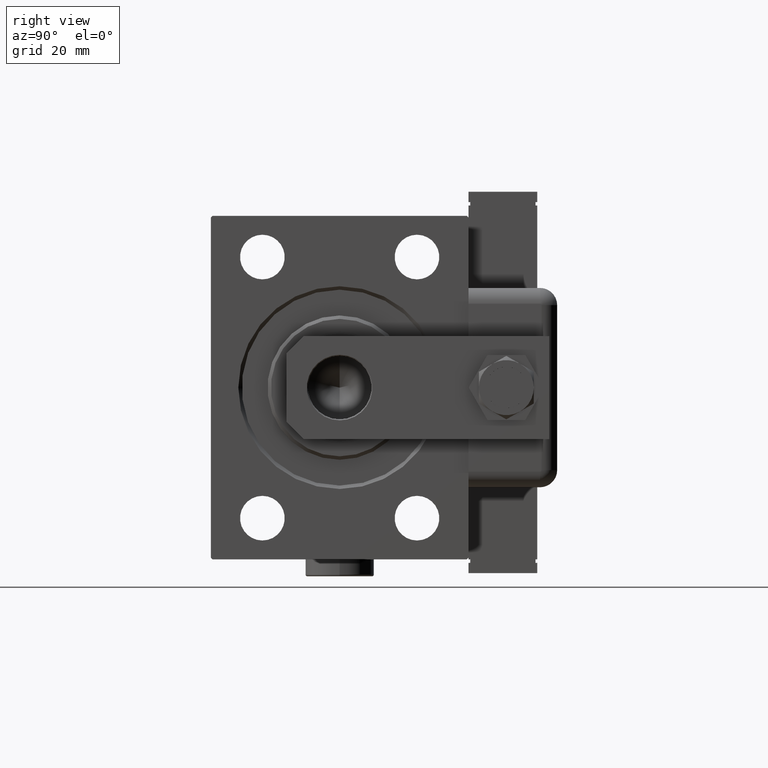
[diagram: clean part render]
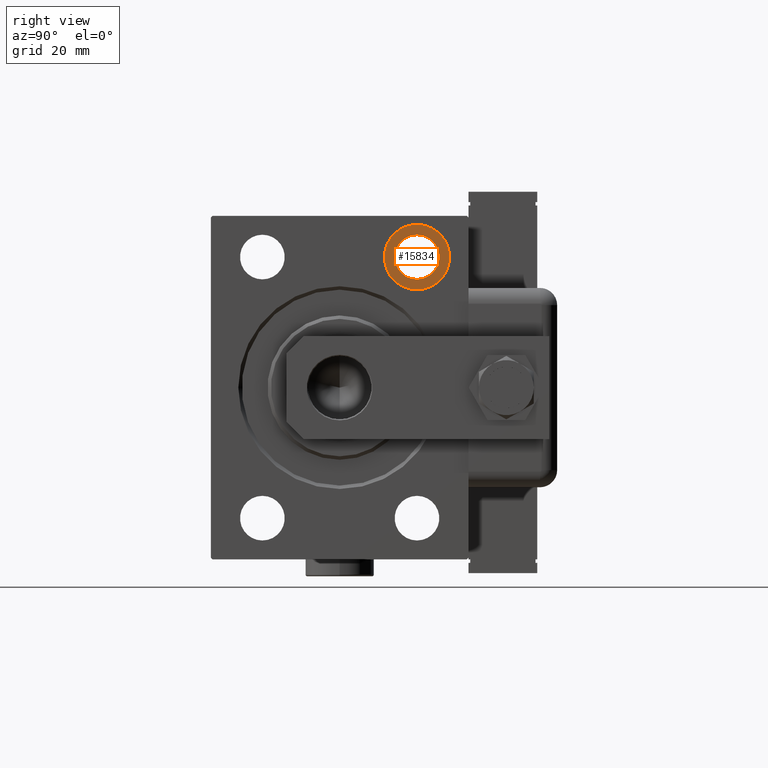
[diagram: same view with one face highlighted and labeled with its STEP entity id]
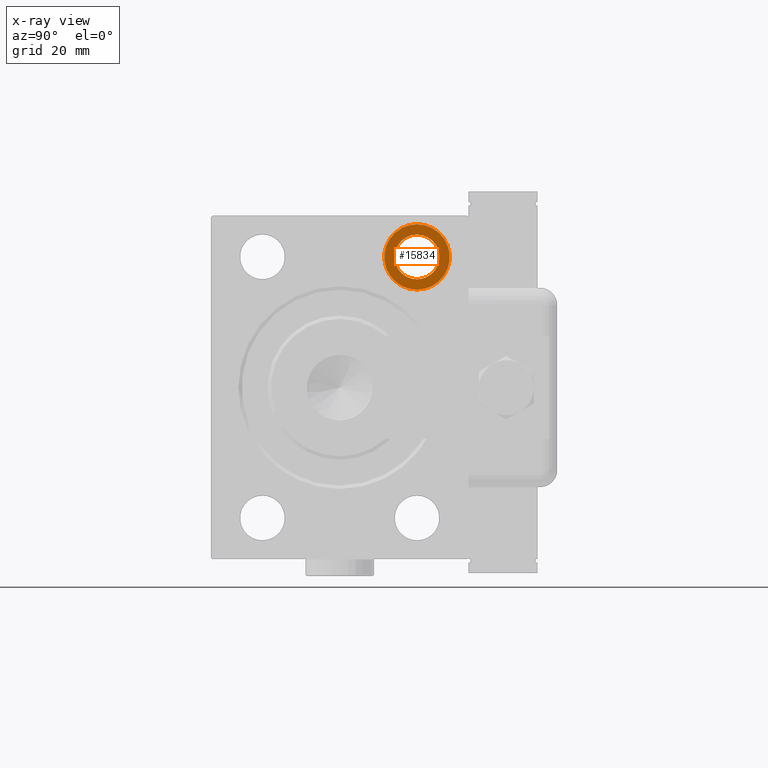
[diagram: x-ray of the same camera — body ghosted, the highlighted face saturated]
A machine part, right view. The second image highlights one B-rep face of the part: STEP entity #15834.
The next image is the same camera in x-ray: the body ghosted, the highlighted face saturated — about 0% of this face is hidden behind the body in this view.
In plain terms, the highlighted planar face has unit normal (1, -0, 0).
Its self-contained STEP definition (entity closure, byte-faithful):
#52 = EDGE_CURVE ( 'NONE', #25029, #39175, #1514, .T. ) ;
#1514 = CIRCLE ( 'NONE', #54400, 9.500000000000001776 ) ;
#2112 = CIRCLE ( 'NONE', #12119, 6.499999999999999112 ) ;
#3174 = VERTEX_POINT ( 'NONE', #4370 ) ;
#3881 = DIRECTION ( 'NONE',  ( -1.000000000000000000, 0.000000000000000000, 0.000000000000000000 ) ) ;
#4370 = CARTESIAN_POINT ( 'NONE',  ( 12.99999999999999822, 22.49999999999999289, -44.50000000000000000 ) ) ;
#8966 = AXIS2_PLACEMENT_3D ( 'NONE', #12736, #11813, #22391 ) ;
#9080 = EDGE_CURVE ( 'NONE', #39175, #25029, #19645, .T. ) ;
#10968 = EDGE_CURVE ( 'NONE', #43226, #3174, #59646, .T. ) ;
#11813 = DIRECTION ( 'NONE',  ( -1.000000000000000000, 0.000000000000000000, 0.000000000000000000 ) ) ;
#12119 = AXIS2_PLACEMENT_3D ( 'NONE', #53463, #25333, #29710 ) ;
#12736 = CARTESIAN_POINT ( 'NONE',  ( 13.00000000000000000, 22.49999999999999289, -38.00000000000000000 ) ) ;
#15834 = ADVANCED_FACE ( 'NONE', ( #35505, #40795 ), #46421, .T. ) ;
#17759 = EDGE_LOOP ( 'NONE', ( #26010, #48371 ) ) ;
#19645 = CIRCLE ( 'NONE', #22632, 9.500000000000001776 ) ;
#19736 = AXIS2_PLACEMENT_3D ( 'NONE', #46033, #26369, #22010 ) ;
#22010 = DIRECTION ( 'NONE',  ( 0.000000000000000000, 0.000000000000000000, 1.000000000000000000 ) ) ;
#22200 = CARTESIAN_POINT ( 'NONE',  ( 13.00000000000000000, 22.49999999999999289, -38.00000000000000000 ) ) ;
#22391 = DIRECTION ( 'NONE',  ( 0.000000000000000000, 0.000000000000000000, 1.000000000000000000 ) ) ;
#22632 = AXIS2_PLACEMENT_3D ( 'NONE', #22200, #22821, #41223 ) ;
#22821 = DIRECTION ( 'NONE',  ( -1.000000000000000000, 0.000000000000000000, 0.000000000000000000 ) ) ;
#22919 = CARTESIAN_POINT ( 'NONE',  ( 13.00000000000000000, 22.49999999999999289, -38.00000000000000000 ) ) ;
#24065 = CARTESIAN_POINT ( 'NONE',  ( 13.00000000000000000, 22.49999999999999289, -47.50000000000000000 ) ) ;
#25029 = VERTEX_POINT ( 'NONE', #24065 ) ;
#25333 = DIRECTION ( 'NONE',  ( -1.000000000000000000, 0.000000000000000000, 0.000000000000000000 ) ) ;
#26010 = ORIENTED_EDGE ( 'NONE', *, *, #9080, .T. ) ;
#26369 = DIRECTION ( 'NONE',  ( -1.000000000000000000, 0.000000000000000000, 0.000000000000000000 ) ) ;
#29710 = DIRECTION ( 'NONE',  ( 0.000000000000000000, 0.000000000000000000, 1.000000000000000000 ) ) ;
#31360 = ORIENTED_EDGE ( 'NONE', *, *, #10968, .F. ) ;
#32578 = DIRECTION ( 'NONE',  ( 0.000000000000000000, 0.000000000000000000, 1.000000000000000000 ) ) ;
#35505 = FACE_BOUND ( 'NONE', #56112, .T. ) ;
#39175 = VERTEX_POINT ( 'NONE', #42919 ) ;
#40795 = FACE_OUTER_BOUND ( 'NONE', #17759, .T. ) ;
#41223 = DIRECTION ( 'NONE',  ( 0.000000000000000000, 0.000000000000000000, 1.000000000000000000 ) ) ;
#42919 = CARTESIAN_POINT ( 'NONE',  ( 13.00000000000000000, 22.49999999999999289, -28.49999999999999645 ) ) ;
#43226 = VERTEX_POINT ( 'NONE', #51932 ) ;
#46033 = CARTESIAN_POINT ( 'NONE',  ( 12.99999999999999822, 22.49999999999999289, -38.00000000000000000 ) ) ;
#46421 = PLANE ( 'NONE',  #8966 ) ;
#48371 = ORIENTED_EDGE ( 'NONE', *, *, #52, .T. ) ;
#51932 = CARTESIAN_POINT ( 'NONE',  ( 12.99999999999999822, 22.49999999999999289, -31.50000000000000000 ) ) ;
#52553 = EDGE_CURVE ( 'NONE', #3174, #43226, #2112, .T. ) ;
#53463 = CARTESIAN_POINT ( 'NONE',  ( 12.99999999999999822, 22.49999999999999289, -38.00000000000000000 ) ) ;
#54400 = AXIS2_PLACEMENT_3D ( 'NONE', #22919, #3881, #32578 ) ;
#56112 = EDGE_LOOP ( 'NONE', ( #31360, #56309 ) ) ;
#56309 = ORIENTED_EDGE ( 'NONE', *, *, #52553, .F. ) ;
#59646 = CIRCLE ( 'NONE', #19736, 6.499999999999999112 ) ;